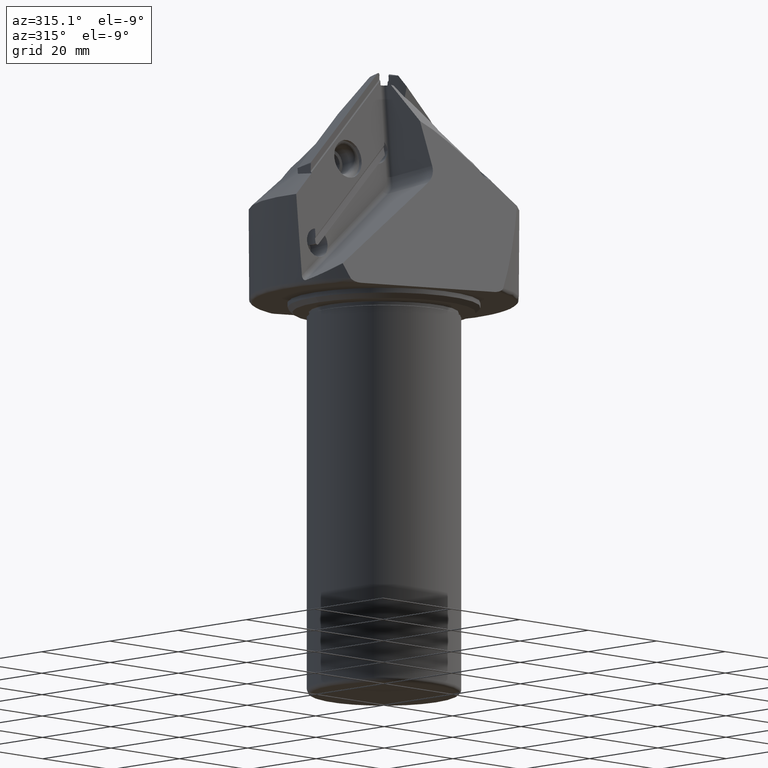
[diagram: clean part render]
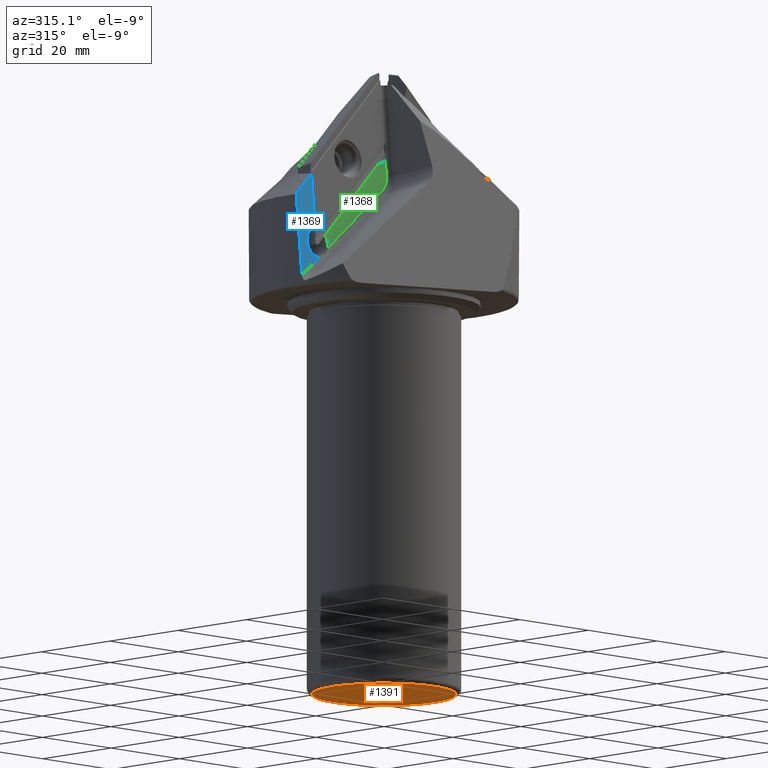
[diagram: same view with three faces highlighted in distinct colors, each labeled with its STEP entity id]
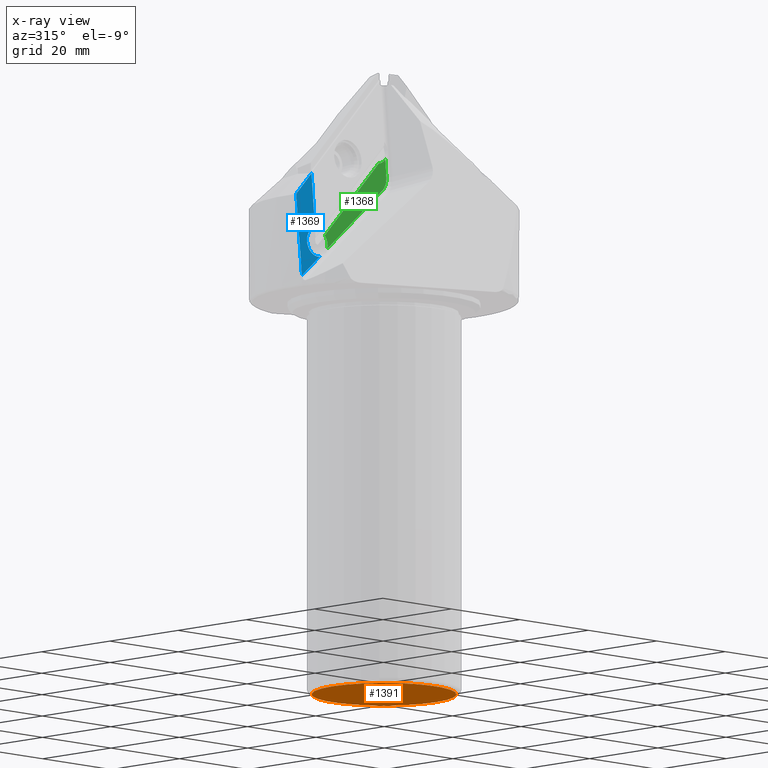
[diagram: x-ray of the same camera — body ghosted, the three highlighted faces saturated]
A machine part, auxiliary view with three faces highlighted in distinct colors.
The next image is the same camera in x-ray (body ghosted, the three faces saturated) — at least one of them is partly hidden behind the body in this view.
Their STEP definitions:

[orange] entity #1391 — the highlighted planar face has unit normal (0, 0, -1).
#139=CIRCLE('',#1555,15.);
#207=FACE_OUTER_BOUND('',#287,.T.);
#287=EDGE_LOOP('',(#1168));
#650=VERTEX_POINT('',#2481);
#835=EDGE_CURVE('',#650,#650,#139,.T.);
#1168=ORIENTED_EDGE('',*,*,#835,.F.);
#1324=PLANE('',#1560);
#1391=ADVANCED_FACE('',(#207),#1324,.T.);
#1555=AXIS2_PLACEMENT_3D('',#2482,#1928,#1929);
#1560=AXIS2_PLACEMENT_3D('',#2490,#1939,#1940);
#1928=DIRECTION('center_axis',(0.,0.,1.));
#1929=DIRECTION('ref_axis',(1.,0.,0.));
#1939=DIRECTION('center_axis',(0.,0.,-1.));
#1940=DIRECTION('ref_axis',(-1.,0.,0.));
#2481=CARTESIAN_POINT('',(15.,-1.83697019872103E-15,-127.442));
#2482=CARTESIAN_POINT('Origin',(0.,0.,-127.442));
#2490=CARTESIAN_POINT('Origin',(0.,0.,-127.442));

[blue] entity #1369 — the highlighted planar face has unit normal (-0, -0.9962, 0.0872).
#20=(
BOUNDED_CURVE()
B_SPLINE_CURVE(2,(#2326,#2327,#2328),.UNSPECIFIED.,.F.,.F.)
B_SPLINE_CURVE_WITH_KNOTS((3,3),(0.,0.216740704497589),.UNSPECIFIED.)
CURVE()
GEOMETRIC_REPRESENTATION_ITEM()
RATIONAL_B_SPLINE_CURVE((1.,1.05893343567275,1.11092007717051))
REPRESENTATION_ITEM('')
);
#120=CIRCLE('',#1500,3.);
#185=FACE_OUTER_BOUND('',#264,.T.);
#264=EDGE_LOOP('',(#1057,#1058,#1059,#1060,#1061));
#329=ELLIPSE('',#1501,321.263970878755,27.9999999999999);
#403=LINE('',#2294,#495);
#407=LINE('',#2324,#499);
#495=VECTOR('',#1787,10.);
#499=VECTOR('',#1803,10.);
#602=VERTEX_POINT('',#2281);
#604=VERTEX_POINT('',#2293);
#609=VERTEX_POINT('',#2321);
#610=VERTEX_POINT('',#2323);
#611=VERTEX_POINT('',#2325);
#766=EDGE_CURVE('',#602,#604,#403,.T.);
#774=EDGE_CURVE('',#602,#609,#120,.T.);
#775=EDGE_CURVE('',#609,#610,#407,.T.);
#776=EDGE_CURVE('',#611,#610,#20,.T.);
#777=EDGE_CURVE('',#604,#611,#329,.T.);
#1057=ORIENTED_EDGE('',*,*,#766,.F.);
#1058=ORIENTED_EDGE('',*,*,#774,.T.);
#1059=ORIENTED_EDGE('',*,*,#775,.T.);
#1060=ORIENTED_EDGE('',*,*,#776,.F.);
#1061=ORIENTED_EDGE('',*,*,#777,.F.);
#1313=PLANE('',#1499);
#1369=ADVANCED_FACE('',(#185),#1313,.T.);
#1499=AXIS2_PLACEMENT_3D('',#2320,#1799,#1800);
#1500=AXIS2_PLACEMENT_3D('',#2322,#1801,#1802);
#1501=AXIS2_PLACEMENT_3D('',#2329,#1804,#1805);
#1787=DIRECTION('',(-0.771505159484471,-0.0554504938141471,-0.633802044509647));
#1799=DIRECTION('center_axis',(-1.26969508518063E-16,-0.996194698091746,
0.0871557427476581));
#1800=DIRECTION('ref_axis',(-1.,1.27416608037282E-16,-4.33237573318032E-19));
#1801=DIRECTION('center_axis',(1.26969508518063E-16,0.996194698091746,-0.0871557427476581));
#1802=DIRECTION('ref_axis',(-1.,1.22464679914735E-16,0.));
#1803=DIRECTION('',(7.16577888065312E-16,0.0871557427476581,0.996194698091746));
#1804=DIRECTION('center_axis',(1.26969508518063E-16,0.996194698091746,-0.0871557427476581));
#1805=DIRECTION('ref_axis',(0.,0.0871557427476581,0.996194698091745));
#2281=CARTESIAN_POINT('',(-22.2154030969771,-3.38433034742242,-38.6830728808608));
#2293=CARTESIAN_POINT('',(-27.7434520961097,-3.78164855464677,-43.2244407702745));
#2294=CARTESIAN_POINT('',(-18.951197721837,-3.14972167664793,-36.0014835032271));
#2320=CARTESIAN_POINT('Origin',(-14.,-1.95332006099595,-22.3265504612167));
#2321=CARTESIAN_POINT('',(-23.0000000018799,-2.86588797160068,-32.7572494092505));
#2322=CARTESIAN_POINT('Origin',(-22.6,-3.1250206242607,-35.7191491825078));
#2323=CARTESIAN_POINT('',(-23.0000000018798,-1.84371678733241,-21.0737793106886));
#2324=CARTESIAN_POINT('',(-23.0000000018798,-1.80579218370531,-20.6402991076694));
#2325=CARTESIAN_POINT('',(-27.9074491134179,-2.27470525167402,-26.));
#2326=CARTESIAN_POINT('Ctrl Pts',(-27.9074491134179,-2.27470525167402,-26.));
#2327=CARTESIAN_POINT('Ctrl Pts',(-25.2171982767104,-2.03843749821013,-23.2994472204518));
#2328=CARTESIAN_POINT('Ctrl Pts',(-23.0000000018798,-1.84371678733241,-21.0737793106886));
#2329=CARTESIAN_POINT('Origin',(0.,0.,4.44089209850063E-15));

[green] entity #1368 — the highlighted planar face has unit normal (-0, -0.9962, 0.0872).
#116=CIRCLE('',#1493,3.99999999999801);
#117=CIRCLE('',#1496,3.);
#118=CIRCLE('',#1497,3.);
#119=CIRCLE('',#1498,3.);
#184=FACE_OUTER_BOUND('',#263,.T.);
#263=EDGE_LOOP('',(#1050,#1051,#1052,#1053,#1054,#1055,#1056));
#400=LINE('',#2257,#492);
#405=LINE('',#2311,#497);
#406=LINE('',#2316,#498);
#492=VECTOR('',#1770,10.);
#497=VECTOR('',#1789,10.);
#498=VECTOR('',#1794,10.);
#593=VERTEX_POINT('',#2246);
#595=VERTEX_POINT('',#2256);
#600=VERTEX_POINT('',#2275);
#603=VERTEX_POINT('',#2282);
#606=VERTEX_POINT('',#2313);
#607=VERTEX_POINT('',#2315);
#608=VERTEX_POINT('',#2317);
#756=EDGE_CURVE('',#593,#595,#400,.T.);
#764=EDGE_CURVE('',#595,#600,#116,.T.);
#769=EDGE_CURVE('',#600,#603,#405,.T.);
#770=EDGE_CURVE('',#593,#606,#117,.T.);
#771=EDGE_CURVE('',#606,#607,#406,.T.);
#772=EDGE_CURVE('',#607,#608,#118,.T.);
#773=EDGE_CURVE('',#608,#603,#119,.T.);
#1050=ORIENTED_EDGE('',*,*,#769,.F.);
#1051=ORIENTED_EDGE('',*,*,#764,.F.);
#1052=ORIENTED_EDGE('',*,*,#756,.F.);
#1053=ORIENTED_EDGE('',*,*,#770,.T.);
#1054=ORIENTED_EDGE('',*,*,#771,.T.);
#1055=ORIENTED_EDGE('',*,*,#772,.T.);
#1056=ORIENTED_EDGE('',*,*,#773,.T.);
#1312=PLANE('',#1495);
#1368=ADVANCED_FACE('',(#184),#1312,.T.);
#1493=AXIS2_PLACEMENT_3D('',#2279,#1783,#1784);
#1495=AXIS2_PLACEMENT_3D('',#2312,#1790,#1791);
#1496=AXIS2_PLACEMENT_3D('',#2314,#1792,#1793);
#1497=AXIS2_PLACEMENT_3D('',#2318,#1795,#1796);
#1498=AXIS2_PLACEMENT_3D('',#2319,#1797,#1798);
#1770=DIRECTION('',(-5.8330863707484E-15,-0.0871557427476581,-0.996194698091746));
#1783=DIRECTION('center_axis',(1.26969508518063E-16,0.996194698091746,-0.0871557427476581));
#1784=DIRECTION('ref_axis',(0.90449518112456,-0.0371705160025631,-0.424860942029922));
#1789=DIRECTION('',(-0.771505159484471,-0.0554504938141471,-0.633802044509647));
#1790=DIRECTION('center_axis',(-1.26969508518063E-16,-0.996194698091746,
0.0871557427476581));
#1791=DIRECTION('ref_axis',(-1.,1.27416608037282E-16,-4.33237573318032E-19));
#1792=DIRECTION('center_axis',(1.26969508518063E-16,0.996194698091746,-0.0871557427476581));
#1793=DIRECTION('ref_axis',(-1.,1.22464679914735E-16,0.));
#1794=DIRECTION('',(-0.707106781186548,-0.0616284167162192,-0.704416026402759));
#1795=DIRECTION('center_axis',(1.26969508518063E-16,0.996194698091746,-0.0871557427476581));
#1796=DIRECTION('ref_axis',(-1.,1.22464679914735E-16,0.));
#1797=DIRECTION('center_axis',(1.26969508518063E-16,0.996194698091746,-0.0871557427476581));
#1798=DIRECTION('ref_axis',(-1.,1.22464679914735E-16,0.));
#2246=CARTESIAN_POINT('',(-1.00000000000009,-1.36625225157574,-15.6163346942762));
#2256=CARTESIAN_POINT('',(-1.00000000000011,-1.69513156773011,-19.375442479217));
#2257=CARTESIAN_POINT('',(-1.00000000000012,-1.82422581436303,-20.8509964702169));
#2275=CARTESIAN_POINT('',(-2.45510773858141,-1.96409598856394,-22.4497198769296));
#2279=CARTESIAN_POINT('Origin',(-5.,-1.69513156773018,-19.3754424792178));
#2282=CARTESIAN_POINT('',(-19.7524480863012,-3.20731005156949,-36.6597216406115));
#2311=CARTESIAN_POINT('',(-18.951197721837,-3.14972167664793,-36.0014835032271));
#2312=CARTESIAN_POINT('Origin',(-14.,-1.95332006099595,-22.3265504612167));
#2313=CARTESIAN_POINT('',(-2.98963496583023,-1.46516742775961,-16.7469403315947));
#2314=CARTESIAN_POINT('Origin',(-3.36866850507807,-1.20579548720438,-13.7823054851797));
#2315=CARTESIAN_POINT('',(-20.2147776822121,-2.96643753514028,-33.9065361795279));
#2316=CARTESIAN_POINT('',(-16.8062182180237,-2.66936200333939,-30.510947313173));
#2317=CARTESIAN_POINT('',(-19.6,-3.1250206242607,-35.7191491825078));
#2318=CARTESIAN_POINT('Origin',(-22.6,-3.1250206242607,-35.7191491825078));
#2319=CARTESIAN_POINT('Origin',(-22.6,-3.1250206242607,-35.7191491825078));